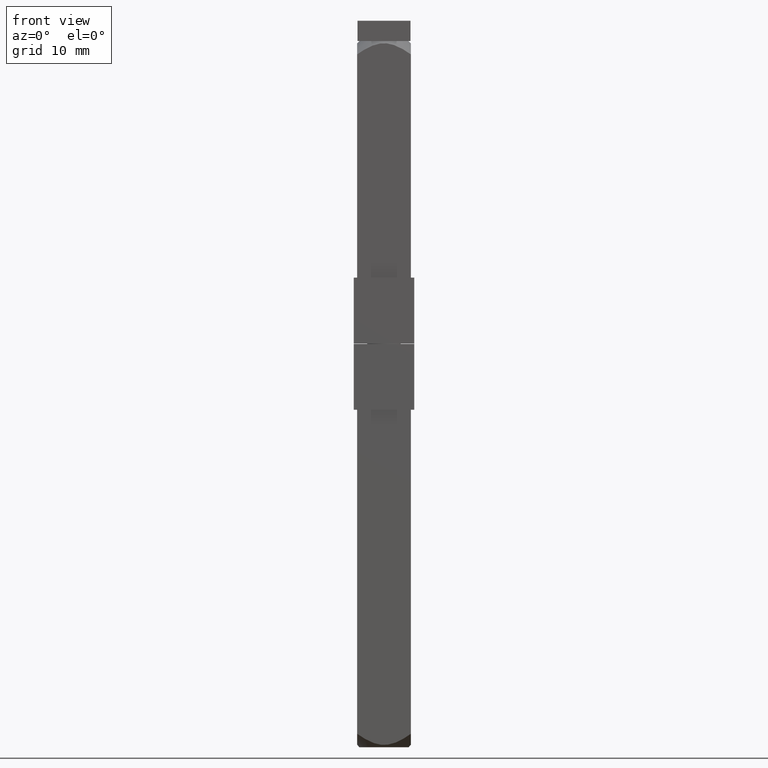
[diagram: clean part render]
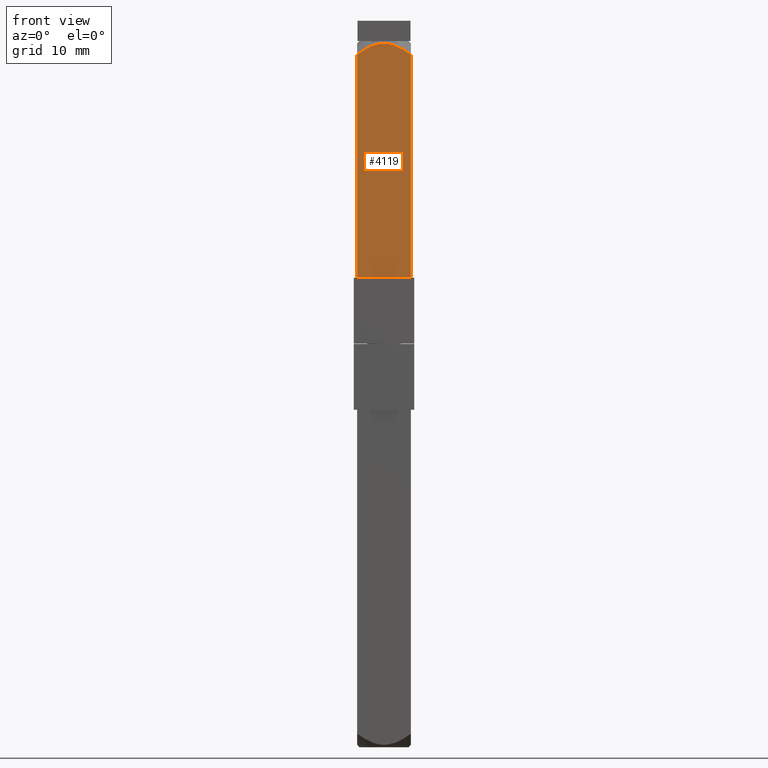
[diagram: same view with one face highlighted and labeled with its STEP entity id]
A machine part, front view. The second image highlights one B-rep face of the part: STEP entity #4119.
In plain terms, the highlighted planar face has unit normal (-0, -1, 0).
Its self-contained STEP definition (entity closure, byte-faithful):
#97 = ORIENTED_EDGE ( 'NONE', *, *, #8006, .F. ) ;
#107 = VECTOR ( 'NONE', #3773, 1000.000000000000000 ) ;
#362 = CARTESIAN_POINT ( 'NONE',  ( 4.000000000000011500, 0.3707782775391594800, -44.64695389706405100 ) ) ;
#471 = CARTESIAN_POINT ( 'NONE',  ( 4.000000000000010700, 3.400465325022333600, -43.41568981188493100 ) ) ;
#513 = CARTESIAN_POINT ( 'NONE',  ( 4.000000000000008900, 2.779486359180818800, -43.79531405501232700 ) ) ;
#554 = CARTESIAN_POINT ( 'NONE',  ( 4.000000000000013300, -4.000000000000009800, -43.00314575050761300 ) ) ;
#1222 = CARTESIAN_POINT ( 'NONE',  ( 4.000000000000010700, 0.1856813462520706700, -44.65988312021666900 ) ) ;
#1344 = AXIS2_PLACEMENT_3D ( 'NONE', #7760, #5230, #4321 ) ;
#1374 = CARTESIAN_POINT ( 'NONE',  ( 4.000000000000013300, -4.000000000000009800, -43.00314575050761300 ) ) ;
#1716 = ORIENTED_EDGE ( 'NONE', *, *, #2553, .F. ) ;
#1756 = PLANE ( 'NONE',  #1344 ) ;
#1897 = CARTESIAN_POINT ( 'NONE',  ( 4.000000000000011500, 8.673617379884062100E-016, -9.800000000000000700 ) ) ;
#2021 = DIRECTION ( 'NONE',  ( -2.168404344971009600E-016, 1.000000000000000000, 0.0000000000000000000 ) ) ;
#2024 = VERTEX_POINT ( 'NONE', #4903 ) ;
#2055 = CARTESIAN_POINT ( 'NONE',  ( 4.000000000000012400, 1.449376973391931100, -44.41929071794311300 ) ) ;
#2553 = EDGE_CURVE ( 'NONE', #6953, #4577, #9376, .T. ) ;
#2947 = ORIENTED_EDGE ( 'NONE', *, *, #5345, .F. ) ;
#3357 = VECTOR ( 'NONE', #5644, 1000.000000000000000 ) ;
#3773 = DIRECTION ( 'NONE',  ( 0.0000000000000000000, -0.0000000000000000000, 1.000000000000000000 ) ) ;
#4050 = CARTESIAN_POINT ( 'NONE',  ( 4.000000000000013300, -3.397323611316192000, -43.41785052794131200 ) ) ;
#4119 = ADVANCED_FACE ( 'NONE', ( #8206 ), #1756, .T. ) ;
#4321 = DIRECTION ( 'NONE',  ( -2.168404344971009600E-016, 1.000000000000000000, 0.0000000000000000000 ) ) ;
#4577 = VERTEX_POINT ( 'NONE', #554 ) ;
#4644 = CARTESIAN_POINT ( 'NONE',  ( 4.000000000000011500, 4.000000000000011500, -43.00314575050761300 ) ) ;
#4903 = CARTESIAN_POINT ( 'NONE',  ( 4.000000000000012400, -4.000000000000009800, -9.800000000000016700 ) ) ;
#5230 = DIRECTION ( 'NONE',  ( 1.000000000000000000, 2.168404344971009600E-016, -0.0000000000000000000 ) ) ;
#5343 = CARTESIAN_POINT ( 'NONE',  ( 4.000000000000011500, 4.000000000000011500, -43.00314575050761300 ) ) ;
#5345 = EDGE_CURVE ( 'NONE', #4577, #2024, #11043, .T. ) ;
#5523 = CARTESIAN_POINT ( 'NONE',  ( 4.000000000000012400, 0.7372169043267304800, -44.59668223526396200 ) ) ;
#5644 = DIRECTION ( 'NONE',  ( 0.0000000000000000000, -0.0000000000000000000, 1.000000000000000000 ) ) ;
#5699 = CARTESIAN_POINT ( 'NONE',  ( 4.000000000000011500, -0.3637571990186364600, -44.66023134941979600 ) ) ;
#5769 = CARTESIAN_POINT ( 'NONE',  ( 4.000000000000011500, -0.7290103960240770200, -44.60876215461613000 ) ) ;
#5955 = EDGE_CURVE ( 'NONE', #6953, #9108, #7766, .T. ) ;
#6517 = CARTESIAN_POINT ( 'NONE',  ( 4.000000000000009800, 2.460946622343698700, -43.97276797375763400 ) ) ;
#6953 = VERTEX_POINT ( 'NONE', #5343 ) ;
#7075 = ORIENTED_EDGE ( 'NONE', *, *, #5955, .T. ) ;
#7097 = CARTESIAN_POINT ( 'NONE',  ( 4.000000000000010700, 4.000000000000011500, -45.00000000000000000 ) ) ;
#7188 = CARTESIAN_POINT ( 'NONE',  ( 4.000000000000011500, 1.796119398810154000, -44.28507935105225400 ) ) ;
#7525 = CARTESIAN_POINT ( 'NONE',  ( 4.000000000000012400, -2.447582843346914700, -43.97973501261442700 ) ) ;
#7729 = LINE ( 'NONE', #1897, #8157 ) ;
#7760 = CARTESIAN_POINT ( 'NONE',  ( 4.000000000000010700, 4.000000000000011500, -45.00000000000000000 ) ) ;
#7766 = LINE ( 'NONE', #7097, #107 ) ;
#8006 = EDGE_CURVE ( 'NONE', #2024, #9108, #7729, .T. ) ;
#8140 = CARTESIAN_POINT ( 'NONE',  ( 4.000000000000010700, 4.000000000000011500, -9.800000000000016700 ) ) ;
#8157 = VECTOR ( 'NONE', #2021, 1000.000000000000000 ) ;
#8206 = FACE_OUTER_BOUND ( 'NONE', #10735, .T. ) ;
#8311 = CARTESIAN_POINT ( 'NONE',  ( 4.000000000000012400, -4.000000000000009800, -45.00000000000000000 ) ) ;
#9108 = VERTEX_POINT ( 'NONE', #8140 ) ;
#9207 = CARTESIAN_POINT ( 'NONE',  ( 4.000000000000010700, -1.443714205921398300, -44.42144097236589300 ) ) ;
#9247 = CARTESIAN_POINT ( 'NONE',  ( 4.000000000000013300, -2.770159802556426700, -43.80077077108951800 ) ) ;
#9376 = B_SPLINE_CURVE_WITH_KNOTS ( 'NONE', 3,
 ( #4644, #10829, #471, #513, #6517, #7188, #2055, #10671, #5523, #362, #1222, #5699, #5769, #9207, #10152, #7525, #9247, #4050, #10118, #1374 ),
 .UNSPECIFIED., .F., .F.,
 ( 4, 2, 2, 2, 2, 2, 2, 2, 2, 4 ),
 ( 0.01744182451309193900, 0.01853605529222103500, 0.01963028607135013100, 0.02072451685047922400, 0.02127163224004377500, 0.02181874762960832300, 0.02291297840873742300, 0.02400720918786652300, 0.02510143996699562200, 0.02619567074612472200 ),
 .UNSPECIFIED. ) ;
#10118 = CARTESIAN_POINT ( 'NONE',  ( 4.000000000000011500, -3.701517467989901400, -43.21420477295767200 ) ) ;
#10152 = CARTESIAN_POINT ( 'NONE',  ( 4.000000000000012400, -1.784885636263737800, -44.28964128341370800 ) ) ;
#10671 = CARTESIAN_POINT ( 'NONE',  ( 4.000000000000011500, 0.9172548636517188200, -44.55974550962093200 ) ) ;
#10735 = EDGE_LOOP ( 'NONE', ( #1716, #7075, #97, #2947 ) ) ;
#10829 = CARTESIAN_POINT ( 'NONE',  ( 4.000000000000011500, 3.702772751614148600, -43.21331715339467600 ) ) ;
#11043 = LINE ( 'NONE', #8311, #3357 ) ;